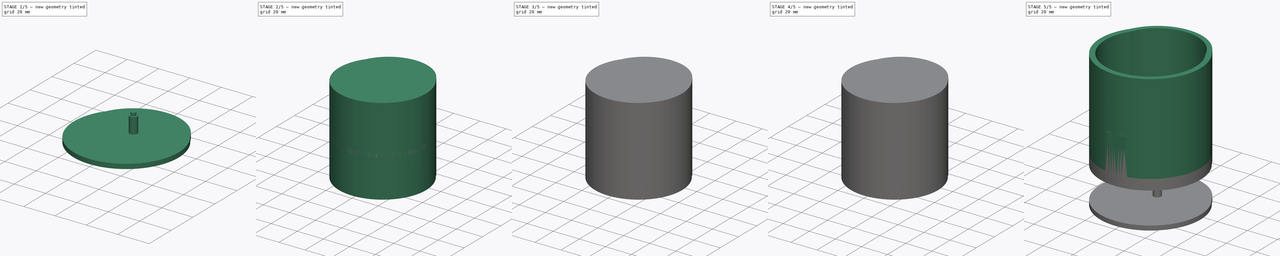
[diagram: build sequence overview — one tinted view per stage of 5, left to right]
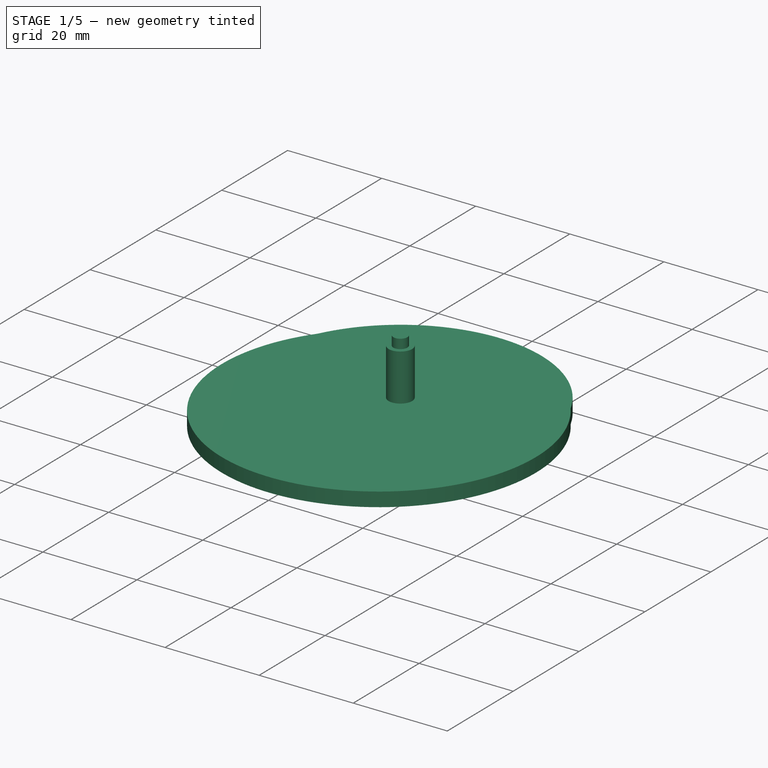
[diagram: stage 1 of 5 — iso view after this stage's code; geometry added in this stage tinted green]
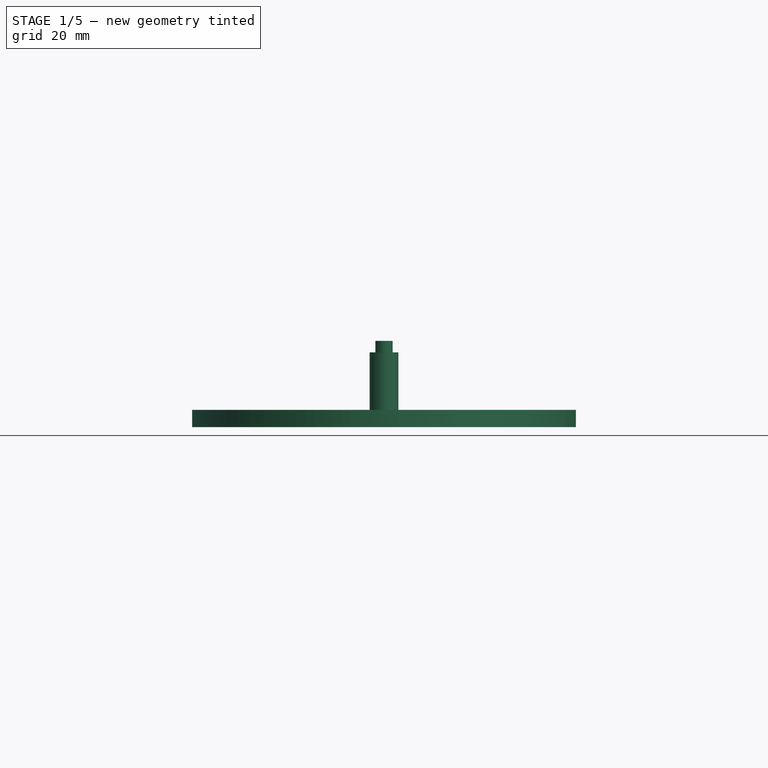
[diagram: stage 1 of 5 — front view after this stage's code; geometry added in this stage tinted green]
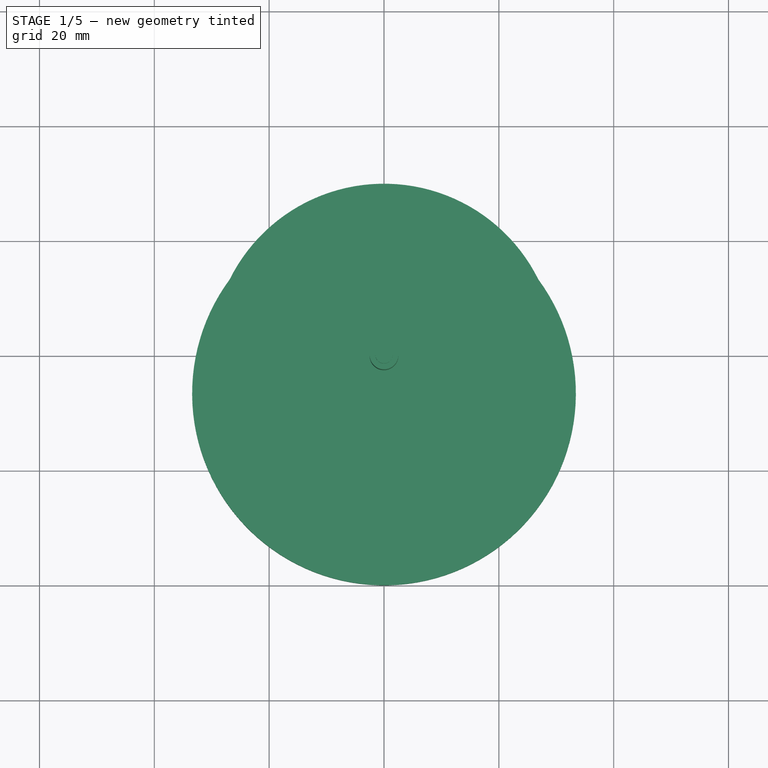
[diagram: stage 1 of 5 — top view after this stage's code; geometry added in this stage tinted green]
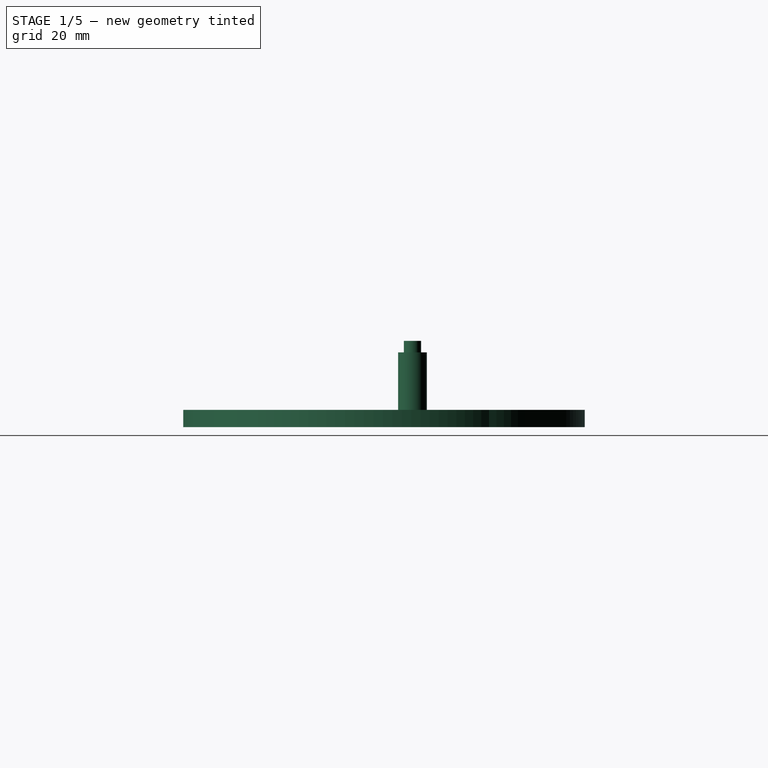
[diagram: stage 1 of 5 — right view after this stage's code; geometry added in this stage tinted green]
FCSTD DOCUMENT  (FreeCAD 0.14R3691 (Git))
Label: BaseMold
License: CC-BY 3.0
LicenseURL: http://creativecommons.org/licenses/by/3.0/
objects: Sketcher::SketchObject×16, Part::Extrusion×11, Part::Cut×6, Part::MultiFuse×2, Part::Fuse×1
note: 36 computed .brp shape members not serialized (recipe doc carries the construction recipe); baked Part::Feature solids carry a one-line shape summary decoded from their .brp

FEATURE [Sketcher::SketchObject] Sketch014  label="Main002"
  Placement = pos=(0,0,-28) rot=(0,0,1;0rad)
  sketch-geometry (3):
    g0: ArcOfCircle CenterX=0 CenterY=0 CenterZ=0 NormalX=0 NormalY=0 NormalZ=1 Radius=30 StartAngle=0.460216 EndAngle=2.68138
    g1: Circle [constr] CenterX=0 CenterY=0 CenterZ=0 NormalX=0 NormalY=0 NormalZ=1 Radius=40
    g2: ArcOfCircle CenterX=0 CenterY=-6.52361 CenterZ=0 NormalX=0 NormalY=0 NormalZ=1 Radius=33.4126 StartAngle=2.50554 EndAngle=6.91924
  constraints (9):
    c: Coincident(g0,g-1)
    c: Radius(g0) = 30
    c: Coincident(g1,g-1)
    c: Radius(g1) = 40
    c: Coincident(g0,g2)
    c: Coincident(g0,g2)
    c: PointOnObject(g2,g-2)
    c: Radius(g2) = 33.4126
    c: DistanceY(g-1,g2) = -6.52361
FEATURE [Part::Extrusion] Extrude009
  Base = -> Sketch014
  Dir = (0,0,-3)
  Solid = true
FEATURE [Part::Extrusion] Extrude010
  Base = -> Sketch006
  Dir = (0,0,10)
  Solid = true
FEATURE [Sketcher::SketchObject] Sketch015  label="MotorTubeInterfaceSketch001"
  Placement = pos=(0,0,-31) rot=(1,0,0;3.14159rad)
  sketch-geometry (1):
    g0: Circle CenterX=0 CenterY=0 CenterZ=0 NormalX=0 NormalY=0 NormalZ=1 Radius=1.5
  constraints (2):
    c: Radius(g0) = 1.5
    c: Coincident(g0,g-1)
FEATURE [Part::Extrusion] Extrude011
  Base = -> Sketch015
  Dir = (0,0,15)
  Solid = true
FEATURE [Part::MultiFuse] Fusion002
  Shapes = -> [Extrude010,Extrude009]
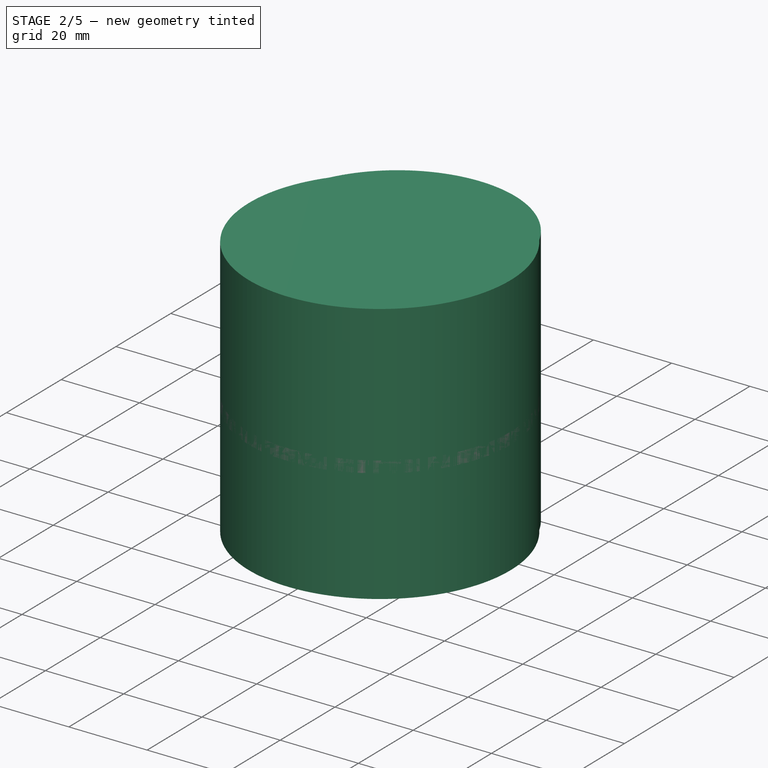
[diagram: stage 2 of 5 — iso view after this stage's code; geometry added in this stage tinted green]
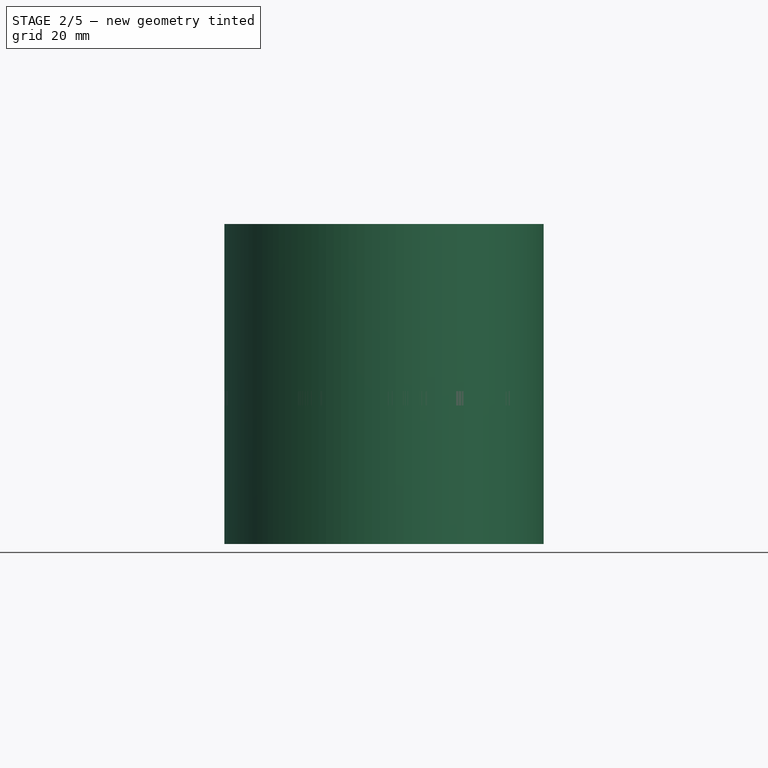
[diagram: stage 2 of 5 — front view after this stage's code; geometry added in this stage tinted green]
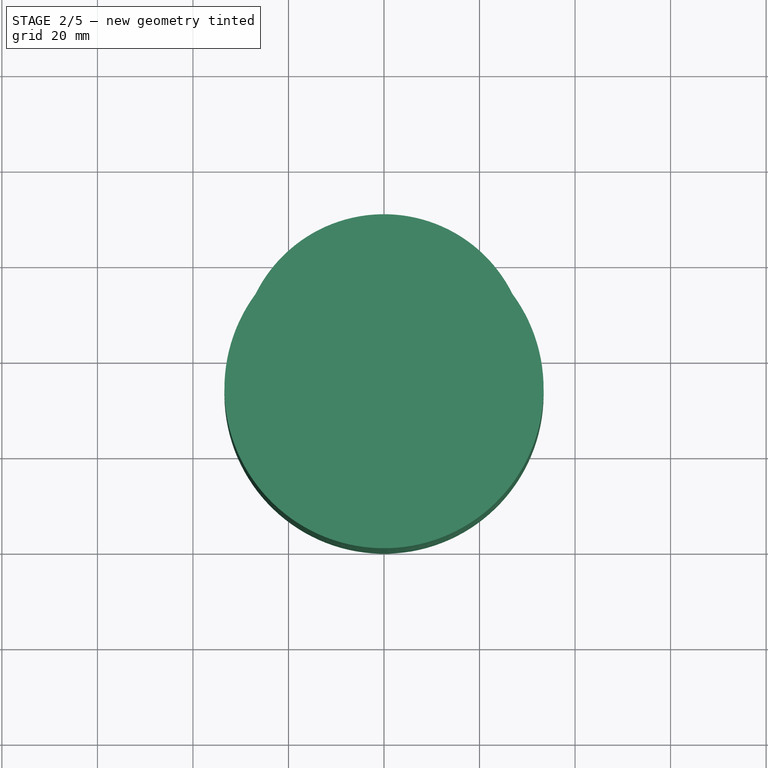
[diagram: stage 2 of 5 — top view after this stage's code; geometry added in this stage tinted green]
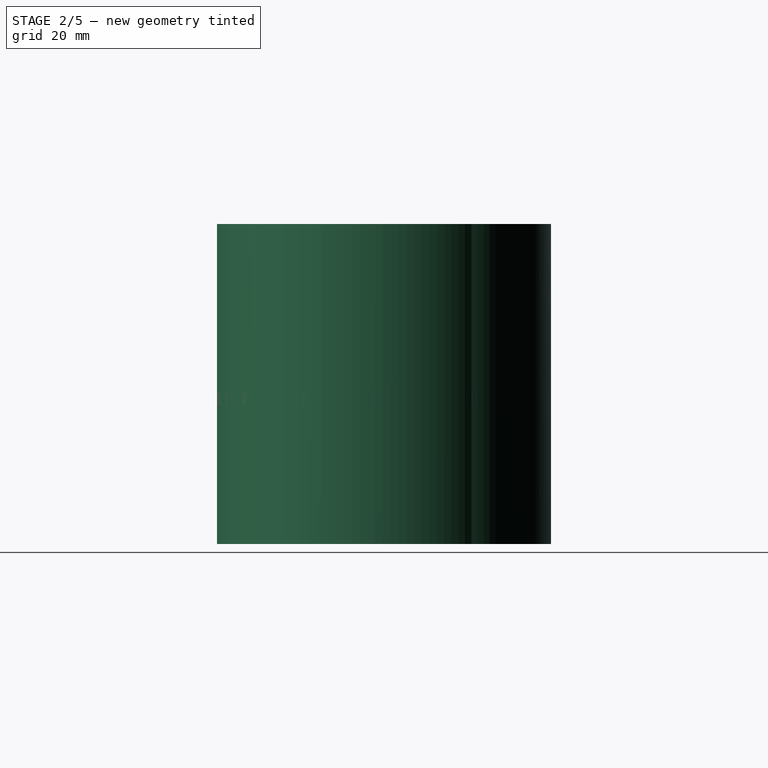
[diagram: stage 2 of 5 — right view after this stage's code; geometry added in this stage tinted green]
FEATURE [Sketcher::SketchObject] Sketch006  label="MotorTubeInterfaceSketch"
  Placement = pos=(0,0,-28) rot=(1,0,0;3.14159rad)
  sketch-geometry (1):
    g0: Circle CenterX=0 CenterY=0 CenterZ=0 NormalX=0 NormalY=0 NormalZ=1 Radius=2.5
  constraints (2):
    c: Radius(g0) = 2.5
    c: Coincident(g0,g-1)
FEATURE [Sketcher::SketchObject] Sketch007  label="LilyPadPort"
  Placement = pos=(0,-40,0) rot=(1,0,0;1.5708rad)
  sketch-geometry (8):
    g0: LineSegment [constr] StartX=-7.25 StartY=-11.75 StartZ=0 EndX=7.25 EndY=-11.75 EndZ=0
    g1: LineSegment [constr] StartX=7.25 StartY=-11.75 StartZ=0 EndX=7.25 EndY=-26.25 EndZ=0
    g2: LineSegment [constr] StartX=7.25 StartY=-26.25 StartZ=0 EndX=-7.25 EndY=-26.25 EndZ=0
    g3: LineSegment [constr] StartX=-7.25 StartY=-26.25 StartZ=0 EndX=-7.25 EndY=-11.75 EndZ=0
    g4: LineSegment StartX=-5.5 StartY=-16.4337 StartZ=0 EndX=5.5 EndY=-16.4337 EndZ=0
    g5: LineSegment StartX=5.5 StartY=-16.4337 StartZ=0 EndX=5.5 EndY=-24.1837 EndZ=0
    g6: LineSegment StartX=5.5 StartY=-24.1837 StartZ=0 EndX=-5.5 EndY=-24.1837 EndZ=0
    g7: LineSegment StartX=-5.5 StartY=-24.1837 StartZ=0 EndX=-5.5 EndY=-16.4337 EndZ=0
  constraints (24):
    c: Coincident(g0,g1)
    c: Coincident(g1,g2)
    c: Coincident(g2,g3)
    c: Coincident(g3,g0)
    c: Horizontal(g0)
    c: Horizontal(g2)
    c: Vertical(g1)
    c: Vertical(g3)
    c: DistanceY(g-1,g0) = -11.75
    c: DistanceY(g1) = -14.5
    c: DistanceX(g2) = -14.5
    c: Symmetric(g0,g0,g-2)
    c: Coincident(g4,g5)
    c: Coincident(g5,g6)
    c: Coincident(g6,g7)
    c: Coincident(g7,g4)
    c: Horizontal(g4)
    c: Horizontal(g6)
    c: Vertical(g5)
    c: Vertical(g7)
    c: DistanceY(g5) = -7.75
    c: DistanceX(g6) = -11
    c: Distance(g4,g0) = 5
    c: Symmetric(g4,g4,g-2)
FEATURE [Sketcher::SketchObject] Sketch008  label="Shell"
  Placement = pos=(0,0,-60) rot=(0,0,1;0rad)
  sketch-geometry (3):
    g0: ArcOfCircle CenterX=0 CenterY=0 CenterZ=0 NormalX=0 NormalY=0 NormalZ=1 Radius=27 StartAngle=0.373213 EndAngle=2.76838
    g1: Circle [constr] CenterX=0 CenterY=0 CenterZ=0 NormalX=0 NormalY=0 NormalZ=1 Radius=40
    g2: ArcOfCircle CenterX=0 CenterY=-6.52361 CenterZ=0 NormalX=0 NormalY=0 NormalZ=1 Radius=30 StartAngle=2.56449 EndAngle=6.86029
  constraints (9):
    c: Coincident(g0,g-1)
    c: Radius(g0) = 27
    c: Coincident(g1,g-1)
    c: Radius(g1) = 40
    c: Coincident(g0,g2)
    c: Coincident(g0,g2)
    c: PointOnObject(g2,g-2)
    c: Radius(g2) = 30
    c: DistanceY(g-1,g2) = -6.52361
FEATURE [Part::Extrusion] Extrude005  label="Base Main"
  Base = -> Sketch
  Dir = (0,0,-60)
  Solid = true
FEATURE [Sketcher::SketchObject] Sketch009  label="Reset002"
  sketch-geometry (4):
    g0: LineSegment StartX=-15 StartY=-15 StartZ=0 EndX=-5 EndY=-15 EndZ=0
    g1: LineSegment StartX=-5 StartY=-15 StartZ=0 EndX=-5 EndY=-23 EndZ=0
    g2: LineSegment StartX=-5 StartY=-23 StartZ=0 EndX=-15 EndY=-23 EndZ=0
    g3: LineSegment StartX=-15 StartY=-23 StartZ=0 EndX=-15 EndY=-15 EndZ=0
  constraints (12):
    c: Coincident(g0,g1)
    c: Coincident(g1,g2)
    c: Coincident(g2,g3)
    c: Coincident(g3,g0)
    c: Horizontal(g0)
    c: Horizontal(g2)
    c: Vertical(g1)
    c: Vertical(g3)
    c: DistanceX(g2) = -10
    c: DistanceY(g1) = -8
    c: DistanceY(g-1,g0) = -15
    c: DistanceX(g-2,g0) = -5
FEATURE [Sketcher::SketchObject] Sketch010  label="Momentary002"
  sketch-geometry (8):
    g0: LineSegment StartX=-18.5201 StartY=0 StartZ=0 EndX=-5.4799 EndY=0 EndZ=0
    g1: LineSegment StartX=-3.5 StartY=-1.9799 StartZ=0 EndX=-3.5 EndY=-12.3001 EndZ=0
    g2: LineSegment StartX=-5.1999 StartY=-14 StartZ=0 EndX=-18.8001 EndY=-14 EndZ=0
    g3: LineSegment StartX=-20.5 StartY=-12.3001 StartZ=0 EndX=-20.5 EndY=-1.9799 EndZ=0
    g4: ArcOfCircle CenterX=-18.5201 CenterY=-1.9799 CenterZ=0 NormalX=0 NormalY=0 NormalZ=1 Radius=1.9799 StartAngle=1.5708 EndAngle=3.14159
    g5: ArcOfCircle CenterX=-5.4799 CenterY=-1.9799 CenterZ=0 NormalX=0 NormalY=0 NormalZ=1 Radius=1.9799 StartAngle=0 EndAngle=1.5708
    g6: ArcOfCircle CenterX=-5.1999 CenterY=-12.3001 CenterZ=0 NormalX=0 NormalY=0 NormalZ=1 Radius=1.6999 StartAngle=4.71239 EndAngle=6.28319
    g7: ArcOfCircle CenterX=-18.8001 CenterY=-12.3001 CenterZ=0 NormalX=0 NormalY=0 NormalZ=1 Radius=1.6999 StartAngle=3.14159 EndAngle=4.71239
  constraints (12):
    c: Horizontal(g0)
    c: Horizontal(g2)
    c: Vertical(g1)
    c: Vertical(g3)
    c: Tangent(g0,g4)
    c: Tangent(g3,g4)
    c: Tangent(g0,g5)
    c: Tangent(g1,g5)
    c: Tangent(g1,g6)
    c: Tangent(g2,g6)
    c: Tangent(g2,g7)
    c: Tangent(g3,g7)
FEATURE [Sketcher::SketchObject] Sketch011  label="Power002"
  sketch-geometry (4):
    g0: LineSegment StartX=1.5 StartY=-1 StartZ=0 EndX=16.5 EndY=-1 EndZ=0
    g1: LineSegment StartX=16.5 StartY=-1 StartZ=0 EndX=16.5 EndY=-15 EndZ=0
    g2: LineSegment StartX=16.5 StartY=-15 StartZ=0 EndX=1.5 EndY=-15 EndZ=0
    g3: LineSegment StartX=1.5 StartY=-15 StartZ=0 EndX=1.5 EndY=-1 EndZ=0
  constraints (12):
    c: Coincident(g0,g1)
    c: Coincident(g1,g2)
    c: Coincident(g2,g3)
    c: Coincident(g3,g0)
    c: Horizontal(g0)
    c: Horizontal(g2)
    c: Vertical(g1)
    c: Vertical(g3)
    c: DistanceY(g1) = -14
    c: DistanceX(g2) = -15
    c: DistanceY(g-1,g0) = -1
    c: DistanceX(g-2,g0) = 1.5
FEATURE [Sketcher::SketchObject] Sketch012  label="USBBody001"
  sketch-geometry (3):
    g0: ArcOfCircle CenterX=0 CenterY=0 CenterZ=0 NormalX=0 NormalY=0 NormalZ=1 Radius=27 StartAngle=4.57305 EndAngle=5.69415
    g1: LineSegment StartX=22.4499 StartY=-15 StartZ=0 EndX=-3.75 EndY=-15 EndZ=0
    g2: LineSegment StartX=-3.75 StartY=-15 StartZ=0 EndX=-3.75 EndY=-26.7383 EndZ=0
  constraints (9):
    c: Coincident(g0,g-1)
    c: Radius(g0) = 27
    c: Coincident(g0,g1)
    c: Coincident(g1,g2)
    c: Coincident(g2,g0)
    c: Vertical(g2)
    c: Horizontal(g1)
    c: DistanceX(g-2,g1) = -3.75
    c: DistanceY(g-1,g1) = -15
FEATURE [Sketcher::SketchObject] Sketch013  label="Main001"
  sketch-geometry (3):
    g0: ArcOfCircle CenterX=0 CenterY=0 CenterZ=0 NormalX=0 NormalY=0 NormalZ=1 Radius=30 StartAngle=0.460216 EndAngle=2.68138
    g1: Circle [constr] CenterX=0 CenterY=0 CenterZ=0 NormalX=0 NormalY=0 NormalZ=1 Radius=40
    g2: ArcOfCircle CenterX=0 CenterY=-6.52361 CenterZ=0 NormalX=0 NormalY=0 NormalZ=1 Radius=33.4126 StartAngle=2.50554 EndAngle=6.91924
  constraints (9):
    c: Coincident(g0,g-1)
    c: Radius(g0) = 30
    c: Coincident(g1,g-1)
    c: Radius(g1) = 40
    c: Coincident(g0,g2)
    c: Coincident(g0,g2)
    c: PointOnObject(g2,g-2)
    c: Radius(g2) = 33.4126
    c: DistanceY(g-1,g2) = -6.52361
FEATURE [Part::Extrusion] Extrude008
  Base = -> Sketch013
  Dir = (0,0,7)
  Solid = true
FEATURE [Part::MultiFuse] Fusion
  Shapes = -> [Extrude008,Extrude005]
FEATURE [Part::Cut] Cut005  label="Lid"
  Base = -> Fusion002
  Tool = -> Extrude011
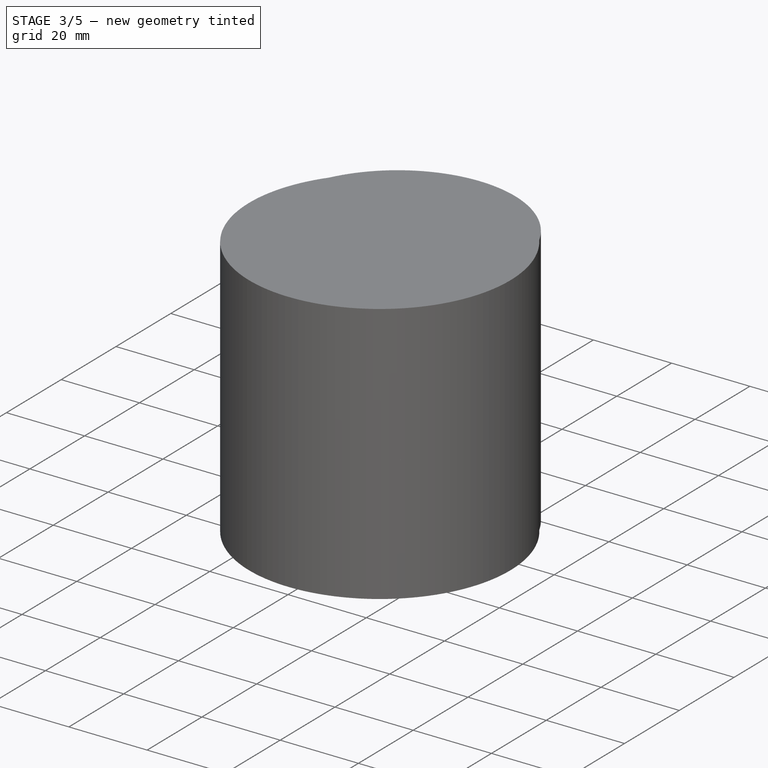
[diagram: stage 3 of 5 — iso view after this stage's code; geometry added in this stage tinted green]
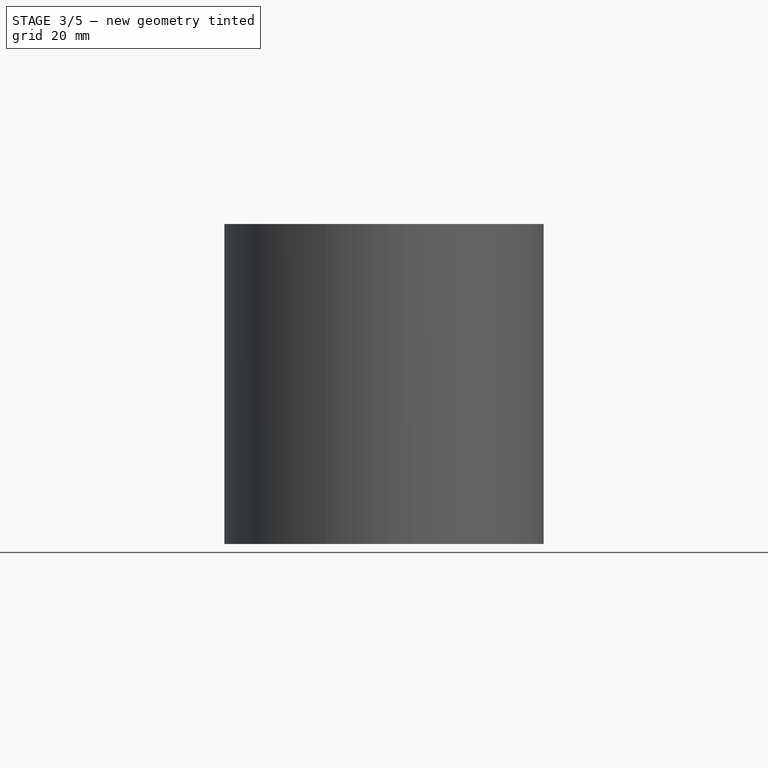
[diagram: stage 3 of 5 — front view after this stage's code; geometry added in this stage tinted green]
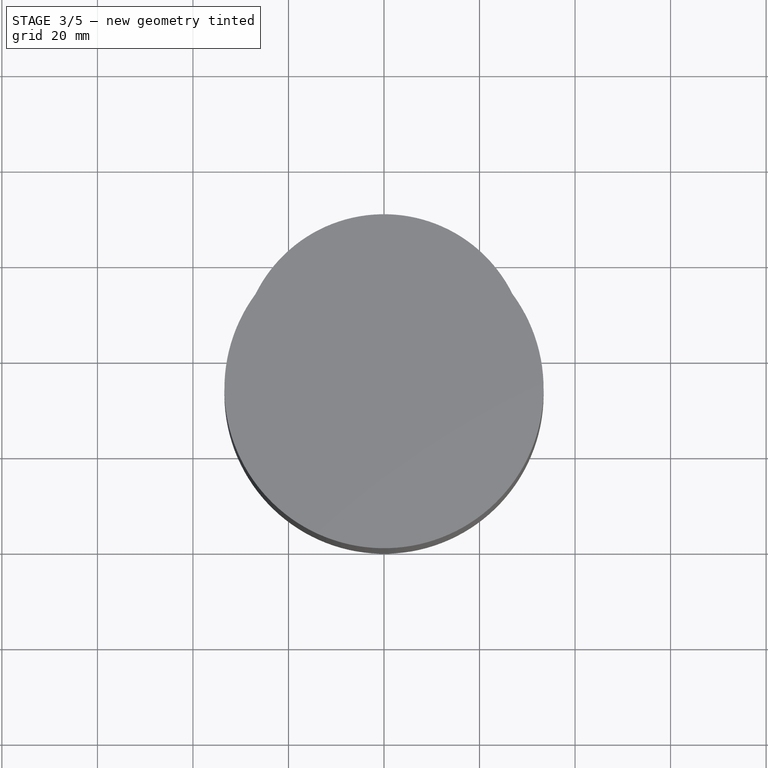
[diagram: stage 3 of 5 — top view after this stage's code; geometry added in this stage tinted green]
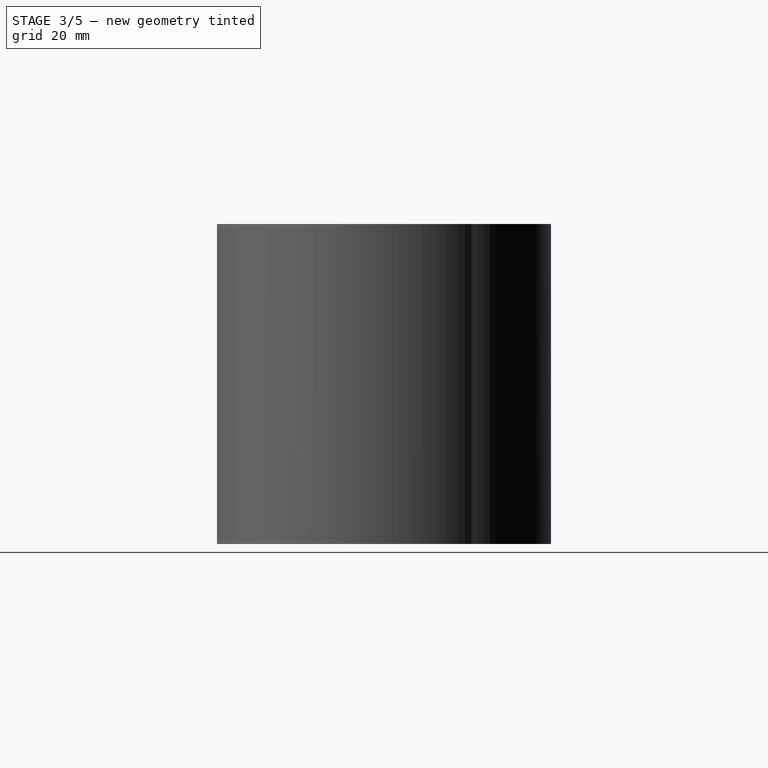
[diagram: stage 3 of 5 — right view after this stage's code; geometry added in this stage tinted green]
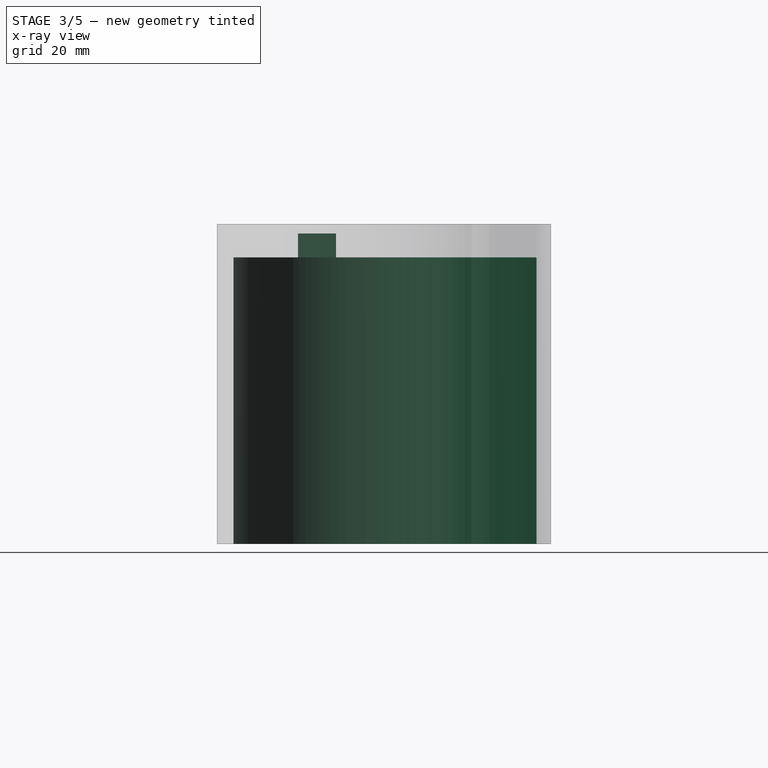
[diagram: stage 3 of 5 — x-ray composite at the right view; earlier geometry ghosted, this stage's added geometry solid]
FEATURE [Sketcher::SketchObject] Sketch005  label="USBBody"
  sketch-geometry (3):
    g0: ArcOfCircle CenterX=0 CenterY=0 CenterZ=0 NormalX=0 NormalY=0 NormalZ=1 Radius=27 StartAngle=4.57305 EndAngle=5.69415
    g1: LineSegment StartX=22.4499 StartY=-15 StartZ=0 EndX=-3.75 EndY=-15 EndZ=0
    g2: LineSegment StartX=-3.75 StartY=-15 StartZ=0 EndX=-3.75 EndY=-26.7383 EndZ=0
  constraints (9):
    c: Coincident(g0,g-1)
    c: Radius(g0) = 27
    c: Coincident(g0,g1)
    c: Coincident(g1,g2)
    c: Coincident(g2,g0)
    c: Vertical(g2)
    c: Horizontal(g1)
    c: DistanceX(g-2,g1) = -3.75
    c: DistanceY(g-1,g1) = -15
FEATURE [Sketcher::SketchObject] Sketch001  label="Reset"
  sketch-geometry (4):
    g0: LineSegment StartX=-15 StartY=-15 StartZ=0 EndX=-5 EndY=-15 EndZ=0
    g1: LineSegment StartX=-5 StartY=-15 StartZ=0 EndX=-5 EndY=-23 EndZ=0
    g2: LineSegment StartX=-5 StartY=-23 StartZ=0 EndX=-15 EndY=-23 EndZ=0
    g3: LineSegment StartX=-15 StartY=-23 StartZ=0 EndX=-15 EndY=-15 EndZ=0
  constraints (12):
    c: Coincident(g0,g1)
    c: Coincident(g1,g2)
    c: Coincident(g2,g3)
    c: Coincident(g3,g0)
    c: Horizontal(g0)
    c: Horizontal(g2)
    c: Vertical(g1)
    c: Vertical(g3)
    c: DistanceX(g2) = -10
    c: DistanceY(g1) = -8
    c: DistanceY(g-1,g0) = -15
    c: DistanceX(g-2,g0) = -5
FEATURE [Part::Extrusion] Extrude  label="Reset001"
  Base = -> Sketch001
  Dir = (0,0,5)
  Solid = true
FEATURE [Part::Extrusion] Extrude006  label="shell"
  Base = -> Sketch008
  Dir = (0,0,60)
  Solid = true
FEATURE [Part::Cut] Cut
  Base = -> Fusion
  Tool = -> Extrude006
FEATURE [Part::Cut] Cut001
  Base = -> Cut
  Tool = -> Extrude
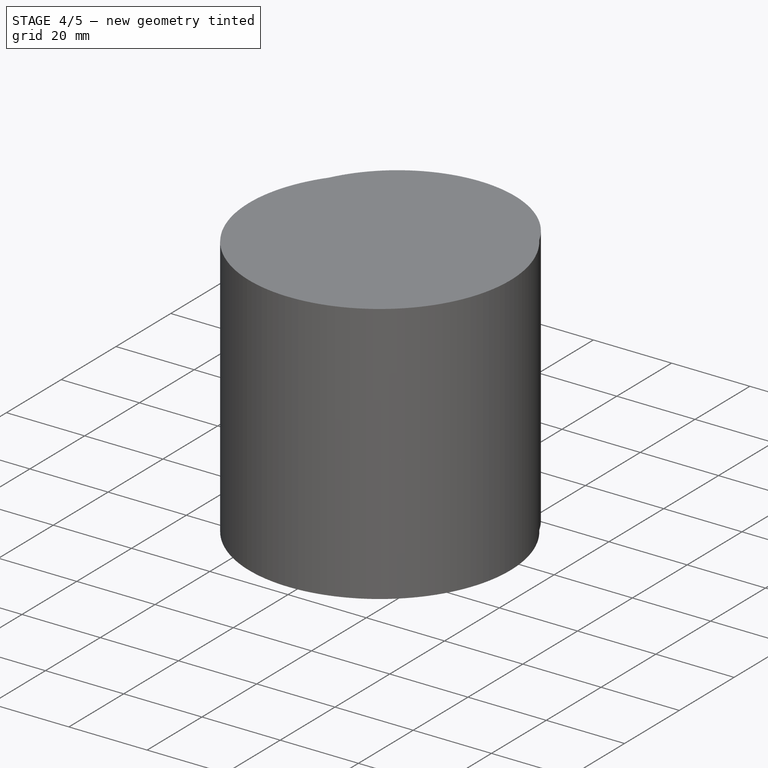
[diagram: stage 4 of 5 — iso view after this stage's code; geometry added in this stage tinted green]
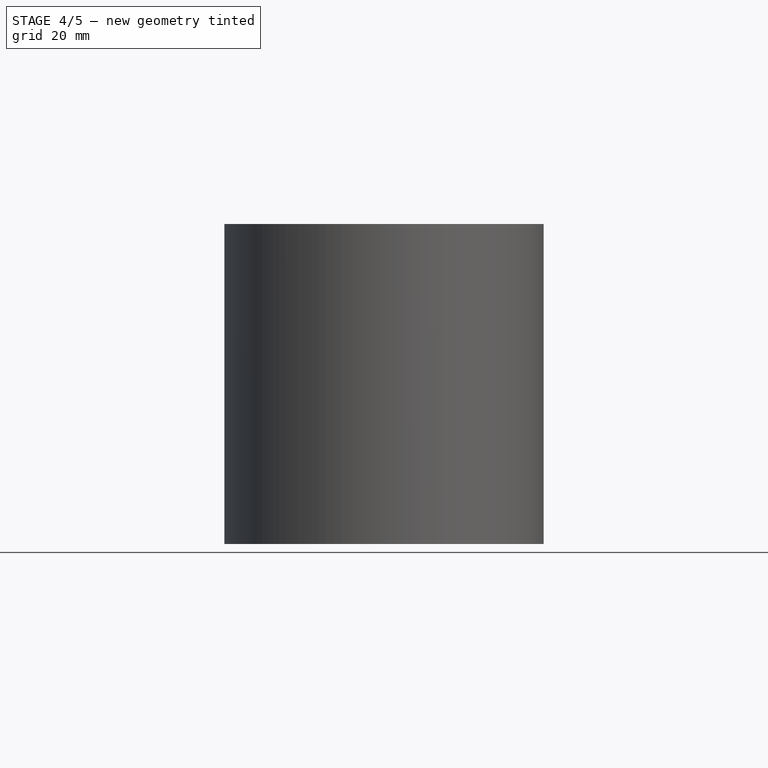
[diagram: stage 4 of 5 — front view after this stage's code; geometry added in this stage tinted green]
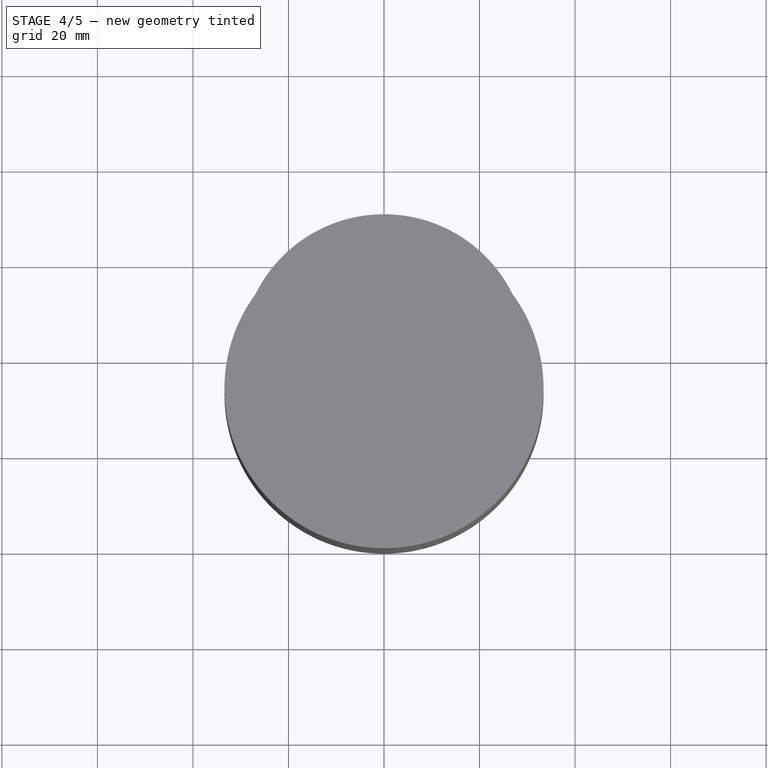
[diagram: stage 4 of 5 — top view after this stage's code; geometry added in this stage tinted green]
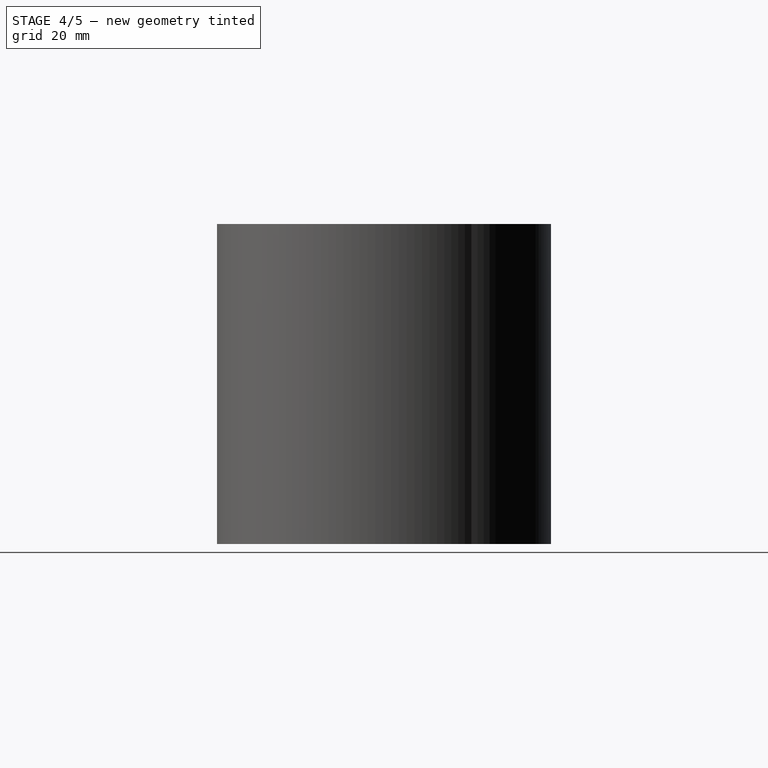
[diagram: stage 4 of 5 — right view after this stage's code; geometry added in this stage tinted green]
FEATURE [Sketcher::SketchObject] Sketch  label="Main"
  sketch-geometry (3):
    g0: ArcOfCircle CenterX=0 CenterY=0 CenterZ=0 NormalX=0 NormalY=0 NormalZ=1 Radius=30 StartAngle=0.460216 EndAngle=2.68138
    g1: Circle [constr] CenterX=0 CenterY=0 CenterZ=0 NormalX=0 NormalY=0 NormalZ=1 Radius=40
    g2: ArcOfCircle CenterX=0 CenterY=-6.52361 CenterZ=0 NormalX=0 NormalY=0 NormalZ=1 Radius=33.4126 StartAngle=2.50554 EndAngle=6.91924
  constraints (9):
    c: Coincident(g0,g-1)
    c: Radius(g0) = 30
    c: Coincident(g1,g-1)
    c: Radius(g1) = 40
    c: Coincident(g0,g2)
    c: Coincident(g0,g2)
    c: PointOnObject(g2,g-2)
    c: Radius(g2) = 33.4126
    c: DistanceY(g-1,g2) = -6.52361
FEATURE [Sketcher::SketchObject] Sketch002  label="Momentary"
  sketch-geometry (4):
    g0: LineSegment StartX=-18.7087 StartY=0 StartZ=0 EndX=-3.46383 EndY=0 EndZ=0
    g1: LineSegment StartX=-3.46383 StartY=0 StartZ=0 EndX=-3.46383 EndY=-26.792 EndZ=0
    g2: LineSegment StartX=-3.46383 StartY=-26.792 StartZ=0 EndX=-18.7087 EndY=-26.792 EndZ=0
    g3: LineSegment StartX=-18.7087 StartY=-26.792 StartZ=0 EndX=-18.7087 EndY=0 EndZ=0
  constraints (12):
    c: Horizontal(g0)
    c: Horizontal(g2)
    c: Vertical(g1)
    c: Vertical(g3)
    c: Coincident(g0,g1)
    c: PointOnObject(g0,g-1)
    c: Coincident(g2,g1)
    c: Coincident(g2,g3)
    c: Coincident(g3,g0)
    c: DistanceX(g0) = 15.2449
    c: DistanceY(g3) = 26.792
    c: Distance(g-1,g1) = 3.46383
FEATURE [Sketcher::SketchObject] Sketch003  label="Power"
  sketch-geometry (4):
    g0: LineSegment StartX=-3.5 StartY=0 StartZ=0 EndX=22.5 EndY=0 EndZ=0
    g1: LineSegment StartX=22.5 StartY=0 StartZ=0 EndX=22.5 EndY=-15 EndZ=0
    g2: LineSegment StartX=22.5 StartY=-15 StartZ=0 EndX=-3.5 EndY=-15 EndZ=0
    g3: LineSegment StartX=-3.5 StartY=-15 StartZ=0 EndX=-3.5 EndY=0 EndZ=0
  constraints (12):
    c: Coincident(g0,g1)
    c: Coincident(g1,g2)
    c: Coincident(g2,g3)
    c: Coincident(g3,g0)
    c: Horizontal(g0)
    c: Horizontal(g2)
    c: Vertical(g1)
    c: Vertical(g3)
    c: DistanceY(g1) = -15
    c: DistanceX(g2) = -26
    c: DistanceX(g-2,g0) = -3.5
    c: PointOnObject(g0,g-1)
FEATURE [Sketcher::SketchObject] Sketch004  label="USBCuts"
  Placement = pos=(0,0,5) rot=(0,0,1;0rad)
  sketch-geometry (8):
    g0: LineSegment StartX=-2.3 StartY=-16 StartZ=0 EndX=2.3 EndY=-16 EndZ=0
    g1: LineSegment StartX=2.3 StartY=-16 StartZ=0 EndX=2.3 EndY=-25.1 EndZ=0
    g2: LineSegment StartX=2.3 StartY=-25.1 StartZ=0 EndX=-2.3 EndY=-25.1 EndZ=0
    g3: LineSegment StartX=-2.3 StartY=-25.1 StartZ=0 EndX=-2.3 EndY=-16 EndZ=0
    g4: LineSegment StartX=13.4 StartY=-20.6 StartZ=0 EndX=4.3 EndY=-20.6 EndZ=0
    g5: LineSegment StartX=4.3 StartY=-20.6 StartZ=0 EndX=4.3 EndY=-16 EndZ=0
    g6: LineSegment StartX=4.3 StartY=-16 StartZ=0 EndX=13.4 EndY=-16 EndZ=0
    g7: LineSegment StartX=13.4 StartY=-16 StartZ=0 EndX=13.4 EndY=-20.6 EndZ=0
  constraints (24):
    c: Coincident(g0,g1)
    c: Coincident(g1,g2)
    c: Coincident(g2,g3)
    c: Coincident(g3,g0)
    c: Horizontal(g0)
    c: Horizontal(g2)
    c: Vertical(g1)
    c: Vertical(g3)
    c: DistanceX(g0) = 4.6
    c: DistanceY(g1) = -9.1
    c: Symmetric(g0,g0,g-2)
    c: DistanceY(g-1,g0) = -16
    c: Coincident(g4,g5)
    c: Coincident(g5,g6)
    c: Coincident(g6,g7)
    c: Coincident(g7,g4)
    c: Horizontal(g4)
    c: Horizontal(g6)
    c: Vertical(g5)
    c: Vertical(g7)
    c: Equal(g5,g2)
    c: Equal(g6,g3)
    c: Distance(g5,g0) = 2
    c: DistanceY(g-1,g5) = -16
FEATURE [Part::Extrusion] Extrude001  label="Momentary001"
  Base = -> Sketch002
  Dir = (0,0,5)
  Solid = true
FEATURE [Part::Extrusion] Extrude002  label="Power001"
  Base = -> Sketch003
  Dir = (0,0,5)
  Solid = true
FEATURE [Part::Cut] Cut002
  Base = -> Cut001
  Tool = -> Extrude001
FEATURE [Part::Cut] Cut003
  Base = -> Cut002
  Tool = -> Extrude002
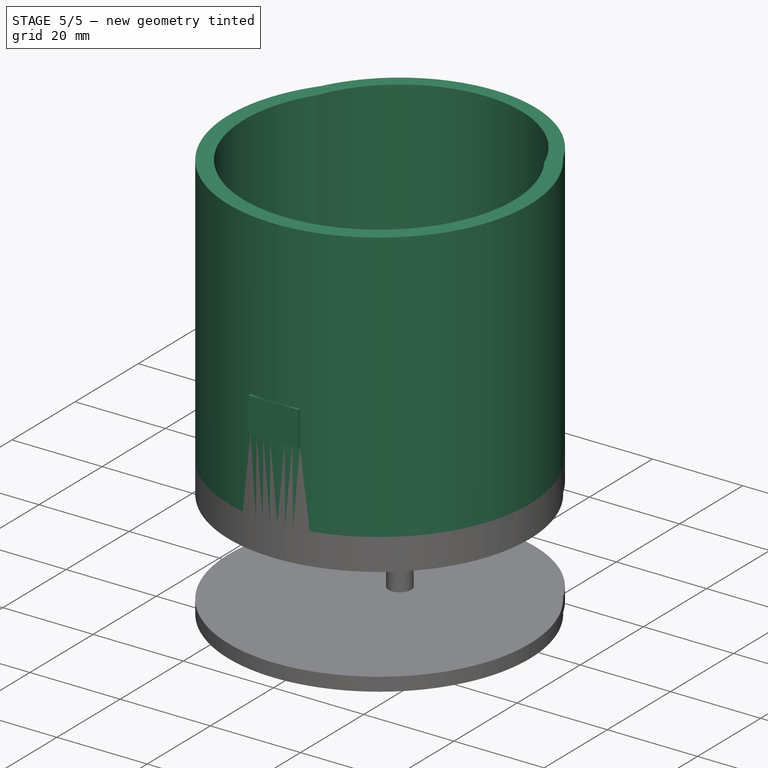
[diagram: stage 5 of 5 — iso view after this stage's code; geometry added in this stage tinted green]
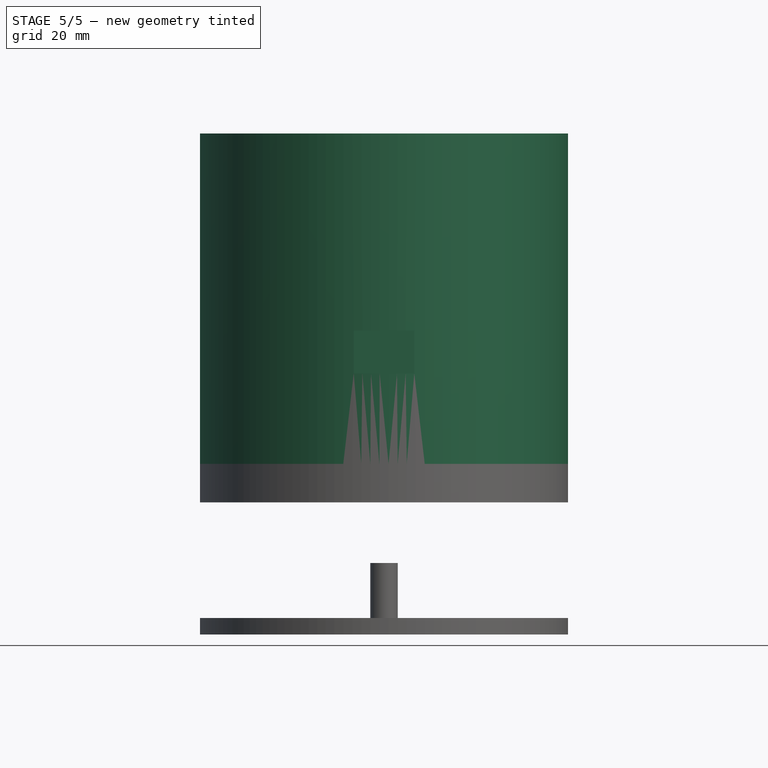
[diagram: stage 5 of 5 — front view after this stage's code; geometry added in this stage tinted green]
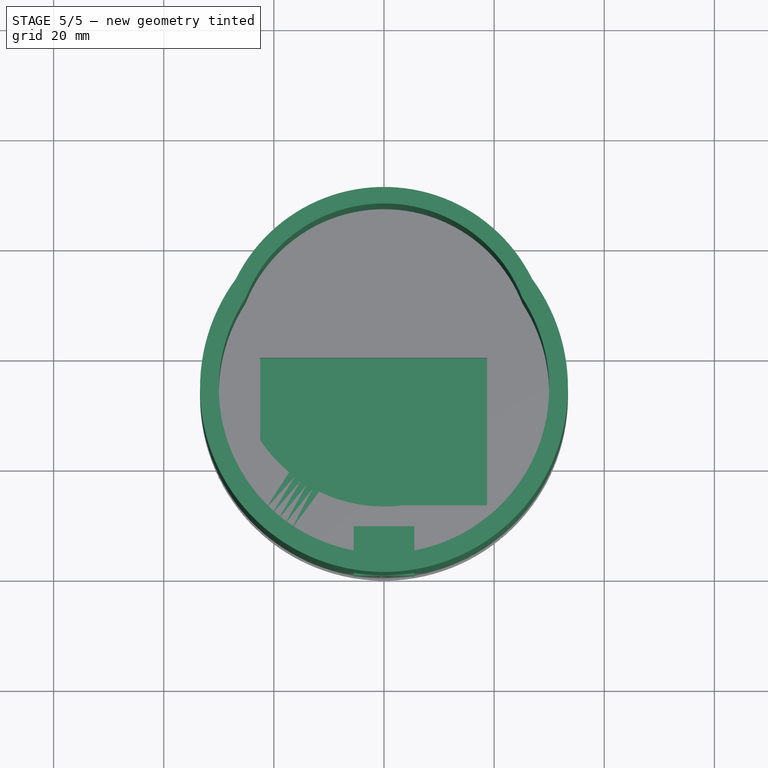
[diagram: stage 5 of 5 — top view after this stage's code; geometry added in this stage tinted green]
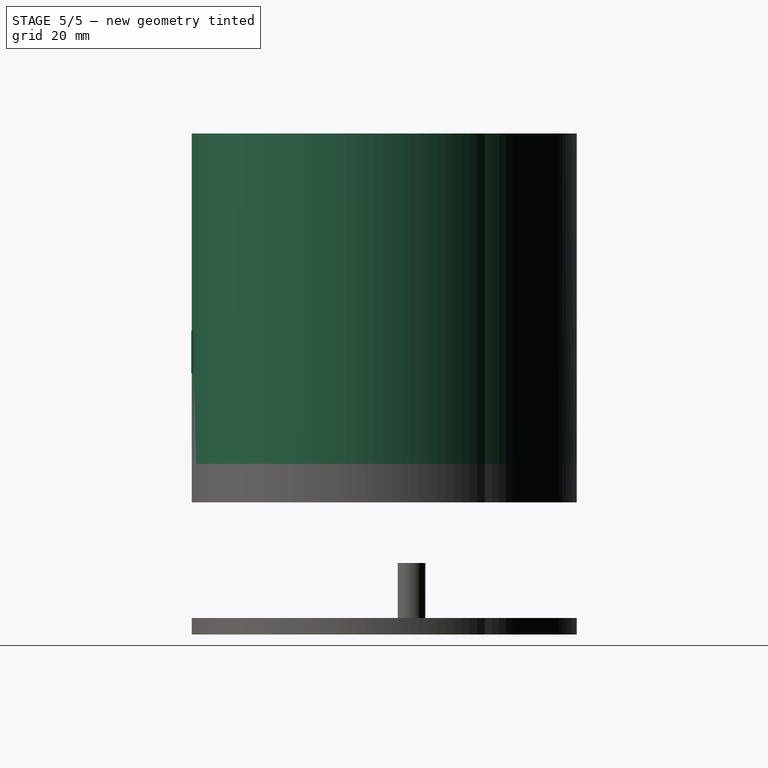
[diagram: stage 5 of 5 — right view after this stage's code; geometry added in this stage tinted green]
FEATURE [Part::Extrusion] Extrude003  label="USB Body"
  Base = -> Sketch005
  Dir = (0,0,5)
  Solid = true
FEATURE [Part::Extrusion] Extrude007  label="lilypadport"
  Base = -> Sketch007
  Dir = (0,9,0)
  Solid = true
FEATURE [Part::Cut] Cut004
  Base = -> Cut003
  Tool = -> Extrude003
FEATURE [Part::Fuse] Fusion001  label="BodyMold"
  Base = -> Cut004
  Placement = pos=(0,0,0) rot=(0,1,0;3.14159rad)
  Tool = -> Extrude007
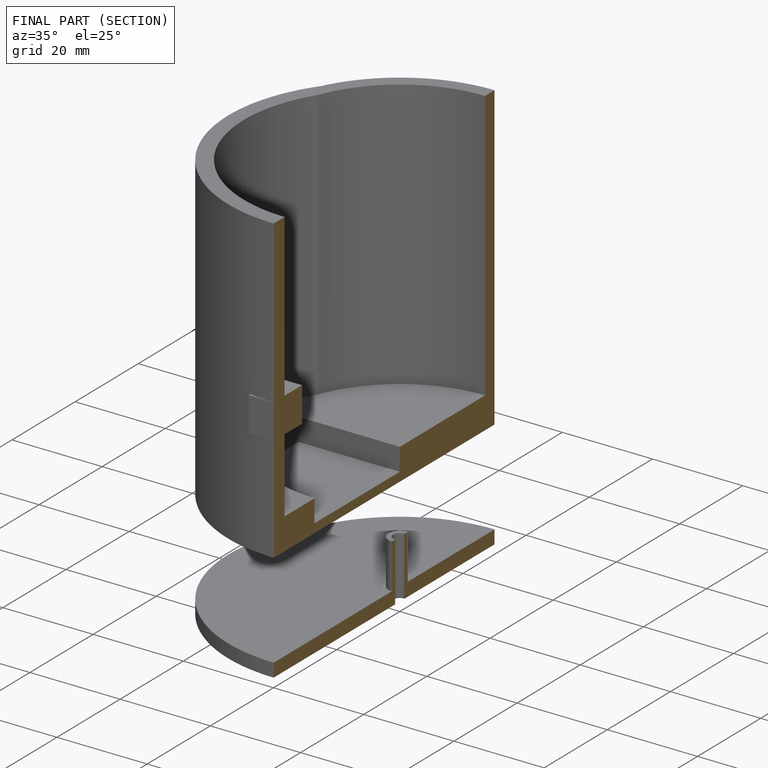
[diagram: finished part — half-section view (interior)]
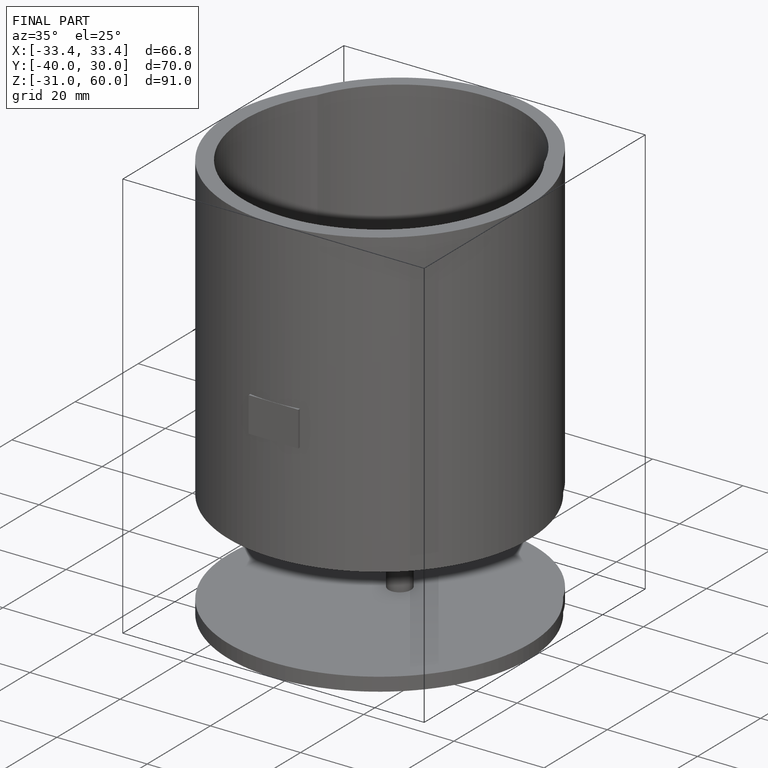
[diagram: finished part — iso view with bounding-box wireframe]
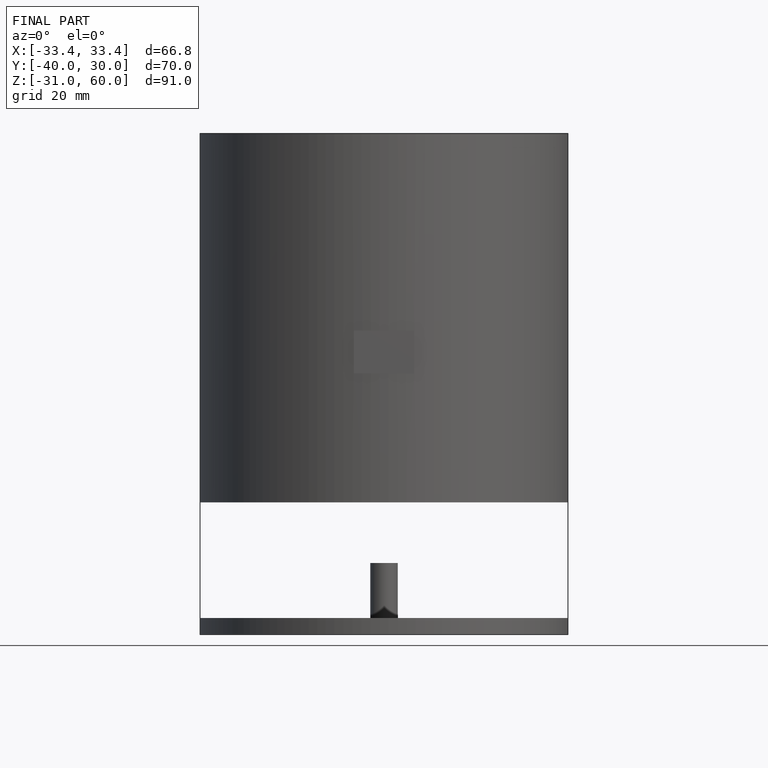
[diagram: finished part — front view with bounding-box wireframe]
